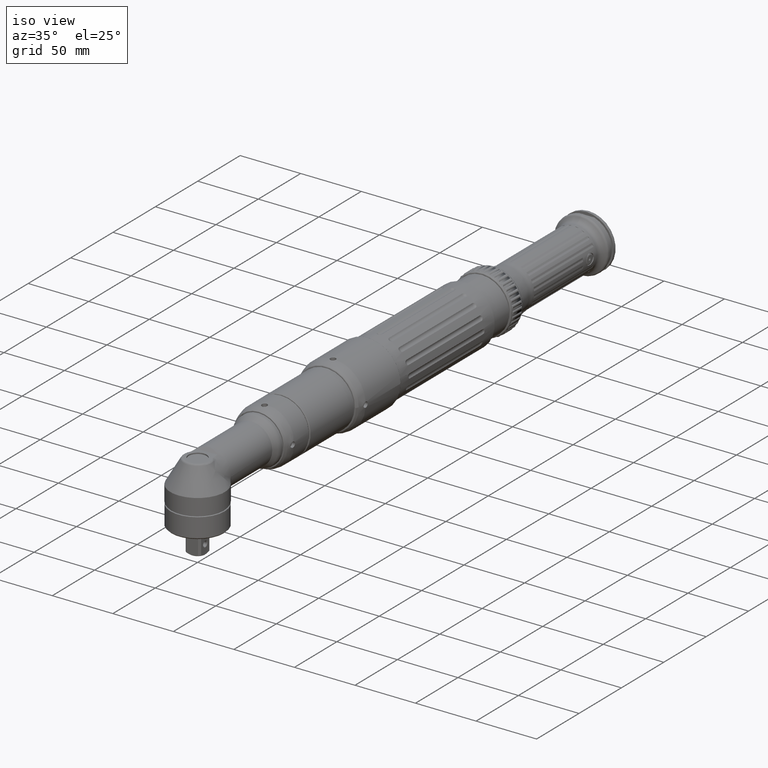
[diagram: clean part render]
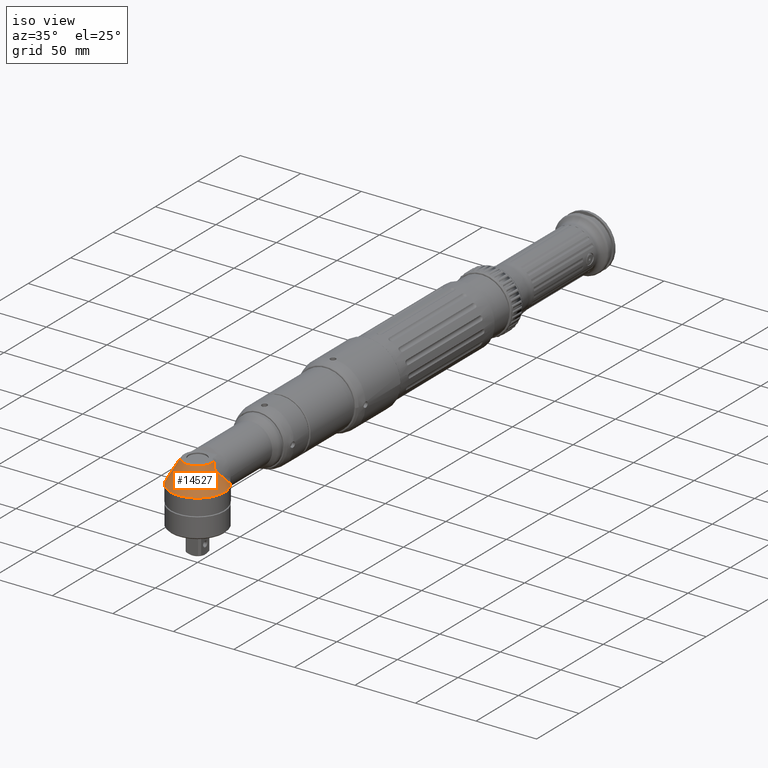
[diagram: same view with one face highlighted and labeled with its STEP entity id]
A machine part, iso view. The second image highlights one B-rep face of the part: STEP entity #14527.
In plain terms, the highlighted conical surface has half-angle 30 deg.
Its self-contained STEP definition (entity closure, byte-faithful):
#1781=CONICAL_SURFACE('',#16374,16.75,30.);
#1805=B_SPLINE_CURVE_WITH_KNOTS('',3,(#21524,#21525,#21526,#21527,#21528,
#21529,#21530,#21531,#21532,#21533,#21534,#21535,#21536,#21537,#21538,#21539,
#21540,#21541),.UNSPECIFIED.,.F.,.F.,(4,1,1,1,1,1,1,1,1,1,1,1,1,1,1,4),
(-2.87314976603078,-2.46269979945629,-2.05224983288179,-1.64179986630729,
-1.2313498997328,-1.02612491644555,-0.923512424801928,-0.872206178980116,
-0.820899933158304,-0.769593687336492,-0.71828744151468,-0.615674949871057,
-0.564368704049245,-0.513062458227433,-0.410449966583809,-9.31366520211277E-12),
 .UNSPECIFIED.);
#1812=B_SPLINE_CURVE_WITH_KNOTS('',3,(#21752,#21753,#21754,#21755,#21756,
#21757,#21758,#21759,#21760,#21761,#21762,#21763,#21764,#21765,#21766,#21767,
#21768),.UNSPECIFIED.,.F.,.F.,(4,1,1,1,1,1,1,1,1,1,1,1,1,1,4),(-2.8731504176591,
-2.66792538782631,-2.46270035799351,-2.25747532816072,-2.15486281324432,
-2.10355655578613,-2.05225029832793,-2.00094404086973,-1.94963778341153,
-1.84702526849513,-1.64180023866234,-1.23135017899676,-0.820900119331171,
-0.410450059665585,0.),.UNSPECIFIED.);
#3279=FACE_OUTER_BOUND('',#4404,.T.);
#4404=EDGE_LOOP('',(#12144,#12145,#12146,#12147,#12148,#12149));
#4518=CIRCLE('',#14673,50.465394785255);
#4525=CIRCLE('',#14680,50.4653947852831);
#4536=CIRCLE('',#14700,22.5);
#5358=CIRCLE('',#16373,11.5773502691896);
#5432=VERTEX_POINT('',#21443);
#5433=VERTEX_POINT('',#21523);
#5435=VERTEX_POINT('',#21582);
#5440=VERTEX_POINT('',#21652);
#5443=VERTEX_POINT('',#21751);
#5444=VERTEX_POINT('',#21790);
#6721=EDGE_CURVE('',#5433,#5432,#1805,.T.);
#6725=EDGE_CURVE('',#5435,#5433,#4518,.T.);
#6735=EDGE_CURVE('',#5440,#5443,#1812,.T.);
#6740=EDGE_CURVE('',#5443,#5444,#4525,.T.);
#6756=EDGE_CURVE('',#5435,#5444,#4536,.T.);
#8478=EDGE_CURVE('',#5432,#5440,#5358,.T.);
#12144=ORIENTED_EDGE('',*,*,#8478,.F.);
#12145=ORIENTED_EDGE('',*,*,#6721,.F.);
#12146=ORIENTED_EDGE('',*,*,#6725,.F.);
#12147=ORIENTED_EDGE('',*,*,#6756,.T.);
#12148=ORIENTED_EDGE('',*,*,#6740,.F.);
#12149=ORIENTED_EDGE('',*,*,#6735,.F.);
#14527=ADVANCED_FACE('',(#3279),#1781,.T.);
#14673=AXIS2_PLACEMENT_3D('',#21593,#16609,#16610);
#14680=AXIS2_PLACEMENT_3D('',#21804,#16625,#16626);
#14700=AXIS2_PLACEMENT_3D('',#21871,#16669,#16670);
#16373=AXIS2_PLACEMENT_3D('',#27070,#20735,#20736);
#16374=AXIS2_PLACEMENT_3D('',#27071,#20737,#20738);
#16609=DIRECTION('center_axis',(-0.0638547790807931,0.699009148677057,0.712256117737377));
#16610=DIRECTION('ref_axis',(-0.997682298249391,-0.0615257973076351,-0.0290621407585906));
#16625=DIRECTION('center_axis',(0.0638547790809711,0.699009148677046,0.712256117737371));
#16626=DIRECTION('ref_axis',(0.997956063486199,-0.0465159347915634,-0.0438173842395483));
#16669=DIRECTION('center_axis',(-1.22464679914735E-16,0.,1.));
#16670=DIRECTION('ref_axis',(1.,0.,1.22464679914735E-16));
#20735=DIRECTION('center_axis',(-1.9179224931628E-16,-6.38796513406746E-32,
1.));
#20736=DIRECTION('ref_axis',(3.33066907387547E-16,-1.,0.));
#20737=DIRECTION('center_axis',(1.22464679914735E-16,0.,-1.));
#20738=DIRECTION('ref_axis',(-1.,0.,0.));
#21443=CARTESIAN_POINT('',(-10.9707652513865,3.69829001756432,13.5000000000686));
#21523=CARTESIAN_POINT('',(-18.5674964772005,11.9305014562416,-4.67395509964038));
#21524=CARTESIAN_POINT('Ctrl Pts',(-18.5674964772005,11.9305014562416,-4.67395509964038));
#21525=CARTESIAN_POINT('Ctrl Pts',(-18.5379227726648,11.0335929717871,-3.79108534805521));
#21526=CARTESIAN_POINT('Ctrl Pts',(-18.3768861997109,9.22701875557004,-1.99675929027528));
#21527=CARTESIAN_POINT('Ctrl Pts',(-17.8506033273755,6.64548261387377,0.630410843603476));
#21528=CARTESIAN_POINT('Ctrl Pts',(-17.0524076835979,4.15887687906334,3.22624915580332));
#21529=CARTESIAN_POINT('Ctrl Pts',(-16.1376893336998,2.16449981033307,5.40093539891998));
#21530=CARTESIAN_POINT('Ctrl Pts',(-15.3700378226717,0.83692386587023,6.90268994573144));
#21531=CARTESIAN_POINT('Ctrl Pts',(-14.9444857066458,0.239970615184814,
7.66762387145157));
#21532=CARTESIAN_POINT('Ctrl Pts',(-14.663771561376,-0.0744650876482055,
8.15407932614881));
#21533=CARTESIAN_POINT('Ctrl Pts',(-14.3940928464547,-0.0764265140934298,
8.62110127342242));
#21534=CARTESIAN_POINT('Ctrl Pts',(-14.1831702212354,0.162782536921501,
8.98642233890708));
#21535=CARTESIAN_POINT('Ctrl Pts',(-13.9190518629327,0.472450092648545,
9.43278347965194));
#21536=CARTESIAN_POINT('Ctrl Pts',(-13.654944532391,0.822835180525006,9.86243037692822));
#21537=CARTESIAN_POINT('Ctrl Pts',(-13.3875126591744,1.15638205480964,10.2798508604896));
#21538=CARTESIAN_POINT('Ctrl Pts',(-13.1176677149927,1.48914483036278,10.6898761071217));
#21539=CARTESIAN_POINT('Ctrl Pts',(-12.3702916158766,2.37109979565747,11.7818549883918));
#21540=CARTESIAN_POINT('Ctrl Pts',(-11.6120962748407,3.13793191729019,12.7574226511006));
#21541=CARTESIAN_POINT('Ctrl Pts',(-10.9707652513011,3.69829001747985,13.5000000002213));
#21582=CARTESIAN_POINT('',(-18.5813121479307,12.6879800938191,-5.41858428704103));
#21593=CARTESIAN_POINT('Origin',(31.7809345742402,15.0354251068628,-3.20732269293062));
#21652=CARTESIAN_POINT('',(10.9707652514687,3.69829001736889,13.5000000000153));
#21751=CARTESIAN_POINT('',(18.5674964772005,11.9305014562416,-4.67395509964039));
#21752=CARTESIAN_POINT('Ctrl Pts',(10.9707652514497,3.69829001735009,13.5000000000493));
#21753=CARTESIAN_POINT('Ctrl Pts',(11.2914308359436,3.41811090370689,13.1287112412779));
#21754=CARTESIAN_POINT('Ctrl Pts',(11.9262509384391,2.82237504031615,12.3536112325936));
#21755=CARTESIAN_POINT('Ctrl Pts',(12.7815863032605,1.89750893392616,11.1956469392679));
#21756=CARTESIAN_POINT('Ctrl Pts',(13.4564848404128,1.08139283331437,10.1851880732719));
#21757=CARTESIAN_POINT('Ctrl Pts',(13.9191606722089,0.473676113449472,9.43265361682342));
#21758=CARTESIAN_POINT('Ctrl Pts',(14.1831803729027,0.162854865175721,8.98641790901075));
#21759=CARTESIAN_POINT('Ctrl Pts',(14.3941292636599,-0.0760370798641419,
8.62106157780743));
#21760=CARTESIAN_POINT('Ctrl Pts',(14.6637917616967,-0.074268417011395,
8.15405937002773));
#21761=CARTESIAN_POINT('Ctrl Pts',(14.9445086729664,0.240206129597296,7.66759963040915));
#21762=CARTESIAN_POINT('Ctrl Pts',(15.3700517234554,0.837015947211557,6.90267333009734));
#21763=CARTESIAN_POINT('Ctrl Pts',(16.1376943147672,2.16461274087356,5.40093289129316));
#21764=CARTESIAN_POINT('Ctrl Pts',(17.0524085628399,4.15887690462876,3.22624109213732));
#21765=CARTESIAN_POINT('Ctrl Pts',(17.8506044106422,6.64548243721693,0.630408016258659));
#21766=CARTESIAN_POINT('Ctrl Pts',(18.3768856545148,9.22701235793804,-1.99675788651508));
#21767=CARTESIAN_POINT('Ctrl Pts',(18.5379227659574,11.033592768366,-3.79108514781812));
#21768=CARTESIAN_POINT('Ctrl Pts',(18.5674964772005,11.9305014562416,-4.67395509964039));
#21790=CARTESIAN_POINT('',(18.5813121479335,12.6879800938088,-5.41858428702899));
#21804=CARTESIAN_POINT('Origin',(-31.7809345742677,15.0354251068705,-3.20732269292283));
#21871=CARTESIAN_POINT('Origin',(6.63585190303623E-16,1.77635683940025E-14,
-5.41858428704207));
#27070=CARTESIAN_POINT('Origin',(-1.07683734303701E-15,1.77635683940025E-14,
13.5));
#27071=CARTESIAN_POINT('Origin',(-5.5607633423002E-16,1.77635683940025E-14,
4.54070785647897));